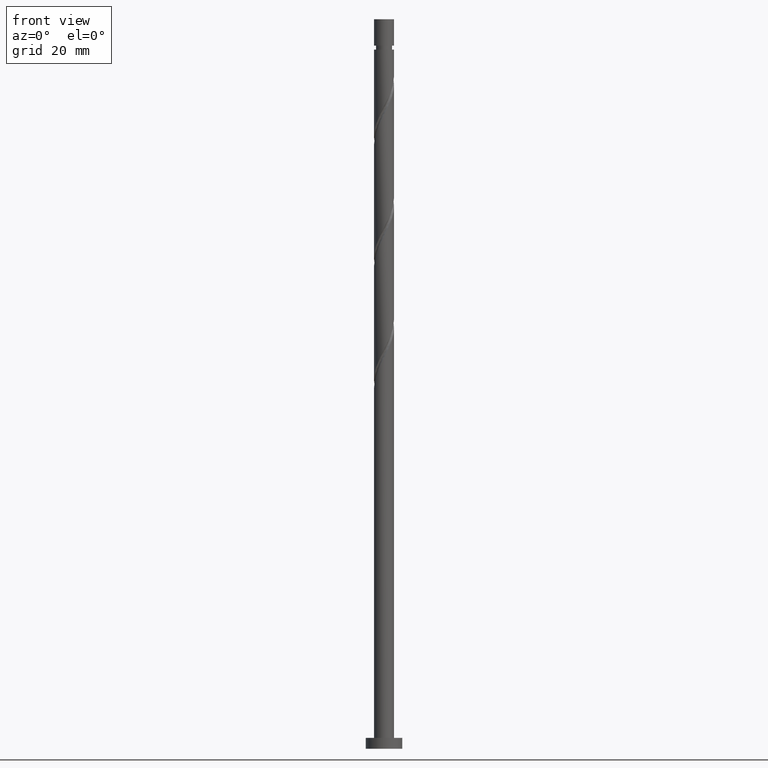
[diagram: clean part render]
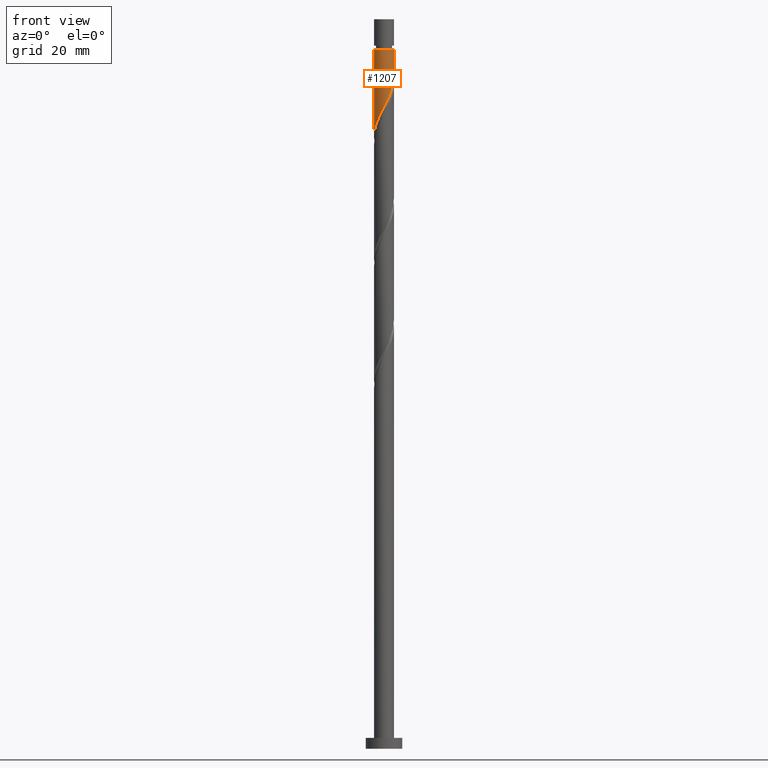
[diagram: same view with one face highlighted and labeled with its STEP entity id]
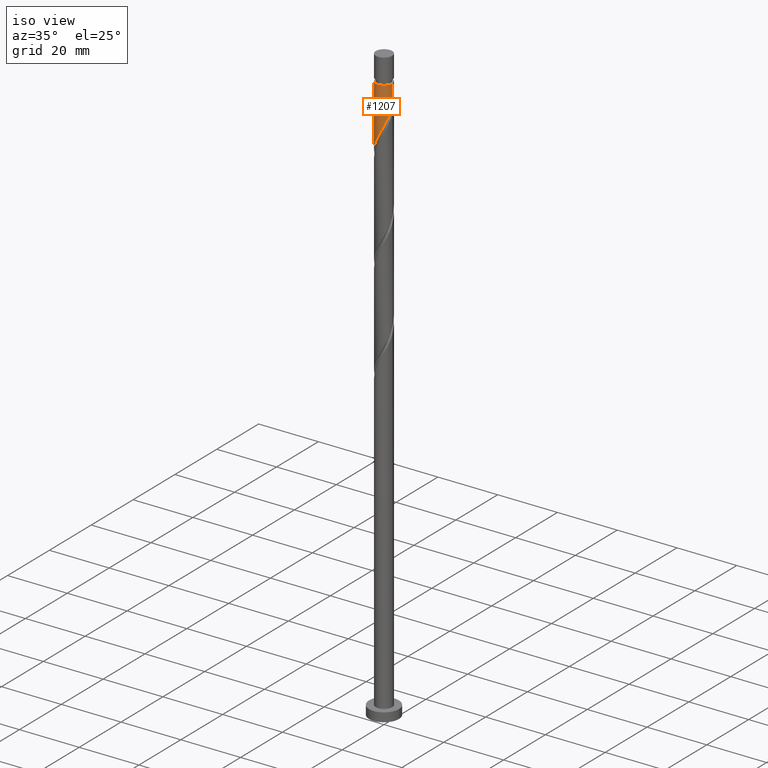
[diagram: same view with one face highlighted and labeled with its STEP entity id]
A machine part, front view. The second image highlights one B-rep face of the part: STEP entity #1207.
A second angle (iso view) of the same face is appended — the face is thin or edge-on in the first view.
In plain terms, the highlighted cylindrical surface (edge-blend (fillet) strip) has radius 2.75 mm, axis along (-0, -0, -1).
Its self-contained STEP definition (entity closure, byte-faithful):
#39 = CARTESIAN_POINT ( 'NONE',  ( -2.744807035947557150, -0.1689210922673420323, 168.0388619949704889 ) ) ;
#52 = CARTESIAN_POINT ( 'NONE',  ( 2.750000000000000888, 3.588908266468810975E-16, 184.3802064279583135 ) ) ;
#134 = CARTESIAN_POINT ( 'NONE',  ( 1.820521580848694976, -2.092672286414962723, 179.8444175505260034 ) ) ;
#146 = AXIS2_PLACEMENT_3D ( 'NONE', #1267, #881, #1525 ) ;
#172 = VECTOR ( 'NONE', #1145, 1000.000000000000000 ) ;
#179 = CARTESIAN_POINT ( 'NONE',  ( -2.607560008403384089, -0.8735735816606111648, 169.4277508838594031 ) ) ;
#194 = CARTESIAN_POINT ( 'NONE',  ( -0.1924396094106113064, -2.767045919639743445, 175.6777508838593747 ) ) ;
#240 =( BOUNDED_CURVE ( )  B_SPLINE_CURVE ( 2, ( #690, #1202, #1745, #1457, #813, #678, #1192, #134, #1660, #337, #455, #468, #992, #194, #1000, #445, #1519, #318, #867, #1016, #1371, #1109, #179, #1247, #39, #753, #1033 ),
 .UNSPECIFIED., .F., .T. ) 
 B_SPLINE_CURVE_WITH_KNOTS ( ( 3, 2, 2, 2, 2, 2, 2, 2, 2, 2, 2, 2, 2, 3 ),
 ( 0.3045317669814464612, 0.3125000000000000000, 0.3229166666666666852, 0.3333333333333333148, 0.3437500000000000000, 0.3541666666666666852, 0.3645833333333333148, 0.3750000000000000000, 0.3854166666666666852, 0.3958333333333333148, 0.4062500000000000000, 0.4166666666666666852, 0.4270833333333333148, 0.4295317669814461281 ),
 .UNSPECIFIED. ) 
 CURVE ( )  GEOMETRIC_REPRESENTATION_ITEM ( )  RATIONAL_B_SPLINE_CURVE ( ( 0.9062941362546468316, 0.9031415850403512469, 0.9090909090909264911, 0.9013135103398449699, 0.9090909090909264911, 0.9013135103398449699, 0.9090909090909264911, 0.9013135103398449699, 0.9090909090909264911, 0.9013135103398449699, 0.9090909090909264911, 0.9013135103398449699, 0.9090909090909264911, 0.9013135103398449699, 0.9090909090909264911, 0.9013135103398449699, 0.9090909090909264911, 0.9013135103398449699, 0.9090909090909264911, 0.9013135103398449699, 0.9090909090909264911, 0.9013135103398449699, 0.9090909090909264911, 0.9013135103398449699, 0.9090909090909264911, 0.9072628343904204362, 0.9062941362546470536 ) ) 
 REPRESENTATION_ITEM ( '' )  );
#288 = ORIENTED_EDGE ( 'NONE', *, *, #415, .T. ) ;
#318 = CARTESIAN_POINT ( 'NONE',  ( -1.550180550263814627, -2.300112255140786655, 172.8999731060816316 ) ) ;
#330 = ORIENTED_EDGE ( 'NONE', *, *, #967, .F. ) ;
#337 = CARTESIAN_POINT ( 'NONE',  ( 1.216865369375926598, -2.492551864551396879, 178.4555286616371745 ) ) ;
#415 = EDGE_CURVE ( 'NONE', #1612, #588, #1447, .T. ) ;
#445 = CARTESIAN_POINT ( 'NONE',  ( -0.9020465714066749907, -2.622954080360256679, 174.2888619949705173 ) ) ;
#455 = CARTESIAN_POINT ( 'NONE',  ( 0.8735735816606108317, -2.607560008403384089, 177.7610842171927743 ) ) ;
#468 = CARTESIAN_POINT ( 'NONE',  ( 0.5302817939452937335, -2.722568152255369078, 177.0666397727482604 ) ) ;
#492 = LINE ( 'NONE', #905, #1028 ) ;
#564 = CIRCLE ( 'NONE', #1153, 2.749999999999988454 ) ;
#588 = VERTEX_POINT ( 'NONE', #1131 ) ;
#674 = CARTESIAN_POINT ( 'NONE',  ( -2.749999999999988454, 0.000000000000000000, 191.6499731060816032 ) ) ;
#678 = CARTESIAN_POINT ( 'NONE',  ( 2.300112255140785766, -1.550180550263815960, 181.2333064394149460 ) ) ;
#690 = CARTESIAN_POINT ( 'NONE',  ( 2.750000000000000888, 3.588908266468810975E-16, 184.3802064279583135 ) ) ;
#753 = CARTESIAN_POINT ( 'NONE',  ( -2.750000000000000888, -0.08454036705860548673, 167.8767034493198196 ) ) ;
#760 = CYLINDRICAL_SURFACE ( 'NONE', #146, 2.750000000000000000 ) ;
#766 = DIRECTION ( 'NONE',  ( -0.000000000000000000, -0.000000000000000000, -1.000000000000000000 ) ) ;
#813 = CARTESIAN_POINT ( 'NONE',  ( 2.461533167750521223, -1.226113560835246474, 181.9277508838594031 ) ) ;
#836 = ORIENTED_EDGE ( 'NONE', *, *, #1355, .F. ) ;
#867 = CARTESIAN_POINT ( 'NONE',  ( -1.821426418339389341, -2.060316917994740926, 172.2055286616371745 ) ) ;
#881 = DIRECTION ( 'NONE',  ( -0.000000000000000000, -0.000000000000000000, -1.000000000000000000 ) ) ;
#905 = CARTESIAN_POINT ( 'NONE',  ( 2.750000000000000000, 3.367778697655221012E-16, 200.0000000000000000 ) ) ;
#967 = EDGE_CURVE ( 'NONE', #1121, #588, #240, .T. ) ;
#992 = CARTESIAN_POINT ( 'NONE',  ( 0.1689210922673411996, -2.744807035947557150, 176.3721953283038033 ) ) ;
#1000 = CARTESIAN_POINT ( 'NONE',  ( -0.5472430904086426073, -2.695000000000000284, 174.9833064394150028 ) ) ;
#1016 = CARTESIAN_POINT ( 'NONE',  ( -2.092672286414962723, -1.820521580848694976, 171.5110842171927175 ) ) ;
#1028 = VECTOR ( 'NONE', #766, 1000.000000000000000 ) ;
#1033 = CARTESIAN_POINT ( 'NONE',  ( -2.750000000000001332, -4.897364405285564850E-15, 167.7135397612916847 ) ) ;
#1098 = VERTEX_POINT ( 'NONE', #1208 ) ;
#1109 = CARTESIAN_POINT ( 'NONE',  ( -2.492551864551396879, -1.216865369375926598, 170.1221953283038033 ) ) ;
#1121 = VERTEX_POINT ( 'NONE', #52 ) ;
#1131 = CARTESIAN_POINT ( 'NONE',  ( -2.750000000000001332, -4.897364405285564850E-15, 167.7135397612916847 ) ) ;
#1135 = DIRECTION ( 'NONE',  ( -0.000000000000000000, -0.000000000000000000, -1.000000000000000000 ) ) ;
#1145 = DIRECTION ( 'NONE',  ( -0.000000000000000000, -0.000000000000000000, -1.000000000000000000 ) ) ;
#1153 = AXIS2_PLACEMENT_3D ( 'NONE', #1227, #1135, #1353 ) ;
#1192 = CARTESIAN_POINT ( 'NONE',  ( 2.060316917994740482, -1.821426418339390008, 180.5388619949705458 ) ) ;
#1193 = EDGE_LOOP ( 'NONE', ( #836, #1395, #288, #330 ) ) ;
#1202 = CARTESIAN_POINT ( 'NONE',  ( 2.749999999999999556, -0.2763853991962917922, 183.8467800587690988 ) ) ;
#1207 = ADVANCED_FACE ( 'NONE', ( #1393 ), #760, .T. ) ;
#1208 = CARTESIAN_POINT ( 'NONE',  ( 2.749999999999988454, 3.367778697655214109E-16, 191.6499731060816032 ) ) ;
#1227 = CARTESIAN_POINT ( 'NONE',  ( 0.000000000000000000, 0.000000000000000000, 191.6499731060816032 ) ) ;
#1247 = CARTESIAN_POINT ( 'NONE',  ( -2.722568152255369078, -0.5302817939452942886, 168.7333064394149460 ) ) ;
#1267 = CARTESIAN_POINT ( 'NONE',  ( 0.000000000000000000, 0.000000000000000000, 200.0000000000000000 ) ) ;
#1353 = DIRECTION ( 'NONE',  ( -1.000000000000000000, 0.000000000000000000, 0.000000000000000000 ) ) ;
#1355 = EDGE_CURVE ( 'NONE', #1098, #1121, #492, .T. ) ;
#1371 = CARTESIAN_POINT ( 'NONE',  ( -2.292612075483178913, -1.518693475112311564, 170.8166397727482604 ) ) ;
#1393 = FACE_OUTER_BOUND ( 'NONE', #1193, .T. ) ;
#1395 = ORIENTED_EDGE ( 'NONE', *, *, #1669, .T. ) ;
#1439 = CARTESIAN_POINT ( 'NONE',  ( -2.750000000000000000, 0.000000000000000000, 200.0000000000000000 ) ) ;
#1447 = LINE ( 'NONE', #1439, #172 ) ;
#1457 = CARTESIAN_POINT ( 'NONE',  ( 2.622954080360255791, -0.9020465714066763230, 182.6221953283038033 ) ) ;
#1519 = CARTESIAN_POINT ( 'NONE',  ( -1.226113560835245142, -2.461533167750521223, 173.5944175505260603 ) ) ;
#1525 = DIRECTION ( 'NONE',  ( -1.000000000000000000, 0.000000000000000000, 0.000000000000000000 ) ) ;
#1612 = VERTEX_POINT ( 'NONE', #674 ) ;
#1660 = CARTESIAN_POINT ( 'NONE',  ( 1.518693475112310676, -2.292612075483180689, 179.1499731060816316 ) ) ;
#1669 = EDGE_CURVE ( 'NONE', #1098, #1612, #564, .T. ) ;
#1745 = CARTESIAN_POINT ( 'NONE',  ( 2.695000000000000284, -0.5472430904086429404, 183.3166397727483456 ) ) ;